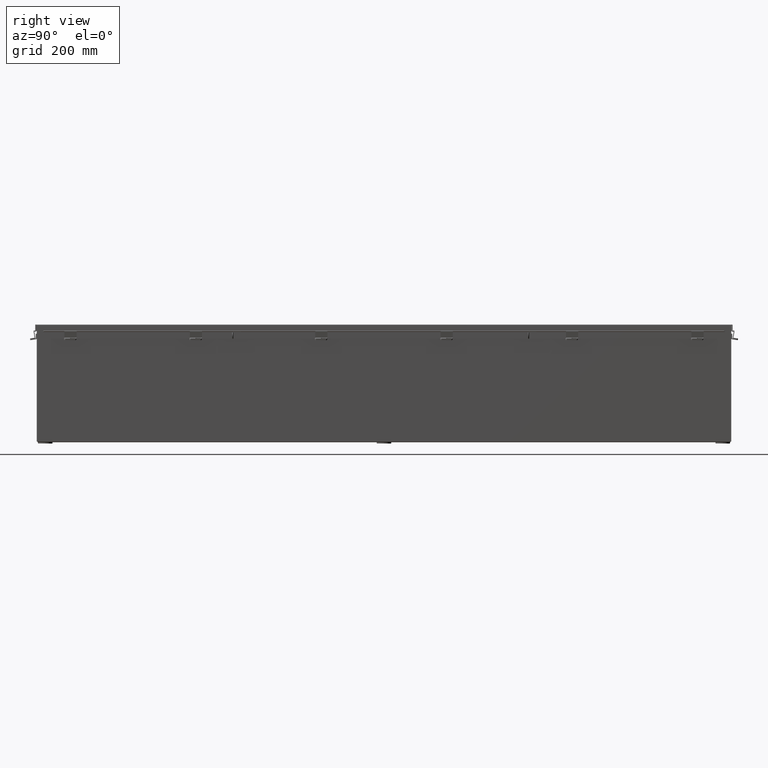
[diagram: clean part render]
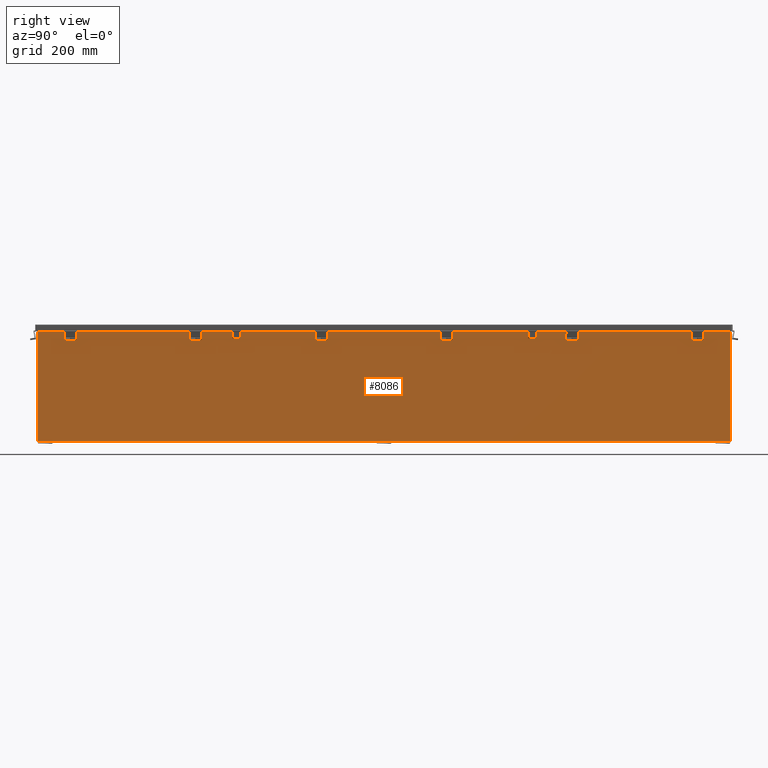
[diagram: same view with one face highlighted and labeled with its STEP entity id]
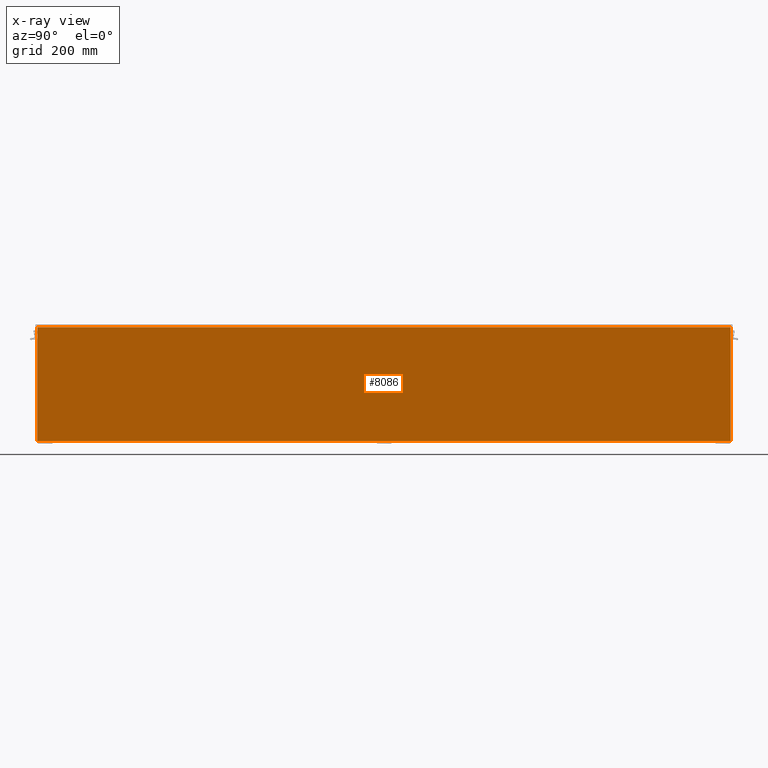
[diagram: x-ray of the same camera — body ghosted, the highlighted face saturated]
A machine part, right view. The second image highlights one B-rep face of the part: STEP entity #8086.
The next image is the same camera in x-ray: the body ghosted, the highlighted face saturated — about 0% of this face is hidden behind the body in this view.
In plain terms, the highlighted planar face has unit normal (-1, 0, 0).
Its self-contained STEP definition (entity closure, byte-faithful):
#3455 = CARTESIAN_POINT ( 'NONE',  ( 5.999999999999997300, 35.92530000000001400, 5.216122262902702500E-015 ) ) ;
#4450 = EDGE_CURVE ( 'NONE', #26165, #10902, #38888, .T. ) ;
#5806 = EDGE_CURVE ( 'NONE', #34579, #10902, #38734, .T. ) ;
#7372 = DIRECTION ( 'NONE',  ( 3.503965158194252100E-015, -7.376768754093162200E-016, 1.000000000000000000 ) ) ;
#8086 = ADVANCED_FACE ( 'NONE', ( #12256 ), #19382, .F. ) ;
#8561 = LINE ( 'NONE', #38218, #26890 ) ;
#9986 = EDGE_LOOP ( 'NONE', ( #32878, #46815, #37263, #10022 ) ) ;
#10022 = ORIENTED_EDGE ( 'NONE', *, *, #11833, .T. ) ;
#10902 = VERTEX_POINT ( 'NONE', #25432 ) ;
#11833 = EDGE_CURVE ( 'NONE', #34579, #21561, #47970, .T. ) ;
#12256 = FACE_OUTER_BOUND ( 'NONE', #9986, .T. ) ;
#14907 = CARTESIAN_POINT ( 'NONE',  ( 5.999999999999997300, -35.92529999999999300, 0.01299999999999984300 ) ) ;
#17952 = AXIS2_PLACEMENT_3D ( 'NONE', #27197, #46809, #23446 ) ;
#19382 = PLANE ( 'NONE',  #17952 ) ;
#21561 = VERTEX_POINT ( 'NONE', #38038 ) ;
#23446 = DIRECTION ( 'NONE',  ( 3.503965158194251300E-015, 0.0000000000000000000, 1.000000000000000000 ) ) ;
#23706 = DIRECTION ( 'NONE',  ( -3.503965158194252100E-015, 0.0000000000000000000, -1.000000000000000000 ) ) ;
#25432 = CARTESIAN_POINT ( 'NONE',  ( 5.999999999999997300, -35.92529999999999300, 0.01299999999999854600 ) ) ;
#26165 = VERTEX_POINT ( 'NONE', #27570 ) ;
#26890 = VECTOR ( 'NONE', #42162, 39.37007874015748100 ) ;
#27191 = VECTOR ( 'NONE', #7372, 39.37007874015748100 ) ;
#27197 = CARTESIAN_POINT ( 'NONE',  ( 5.999999999999997300, 0.0000000000000000000, -2.128280327564064900E-014 ) ) ;
#27570 = CARTESIAN_POINT ( 'NONE',  ( 6.000000000000039100, -35.92529999999999300, 11.83759999999999800 ) ) ;
#28523 = VECTOR ( 'NONE', #23706, 39.37007874015748100 ) ;
#32878 = ORIENTED_EDGE ( 'NONE', *, *, #46233, .T. ) ;
#34353 = DIRECTION ( 'NONE',  ( -1.598700668434076300E-031, -1.000000000000000000, -4.562547275036140500E-017 ) ) ;
#34579 = VERTEX_POINT ( 'NONE', #45676 ) ;
#37263 = ORIENTED_EDGE ( 'NONE', *, *, #5806, .F. ) ;
#38038 = CARTESIAN_POINT ( 'NONE',  ( 6.000000000000040900, 35.92529999999999300, 11.83759999999999800 ) ) ;
#38218 = CARTESIAN_POINT ( 'NONE',  ( 6.000000000000040900, 35.92530000000000700, 11.83759999999999800 ) ) ;
#38734 = LINE ( 'NONE', #14907, #47926 ) ;
#38888 = LINE ( 'NONE', #47081, #28523 ) ;
#42162 = DIRECTION ( 'NONE',  ( -0.0000000000000000000, -1.000000000000000000, -0.0000000000000000000 ) ) ;
#45676 = CARTESIAN_POINT ( 'NONE',  ( 5.999999999999997300, 35.92530000000001400, 0.01300000000000312000 ) ) ;
#46233 = EDGE_CURVE ( 'NONE', #21561, #26165, #8561, .T. ) ;
#46809 = DIRECTION ( 'NONE',  ( -1.000000000000000000, 0.0000000000000000000, 3.503965158194251300E-015 ) ) ;
#46815 = ORIENTED_EDGE ( 'NONE', *, *, #4450, .T. ) ;
#47081 = CARTESIAN_POINT ( 'NONE',  ( 5.999999999999997300, -35.92529999999999300, -2.128280327564064900E-014 ) ) ;
#47926 = VECTOR ( 'NONE', #34353, 39.37007874015748100 ) ;
#47970 = LINE ( 'NONE', #3455, #27191 ) ;